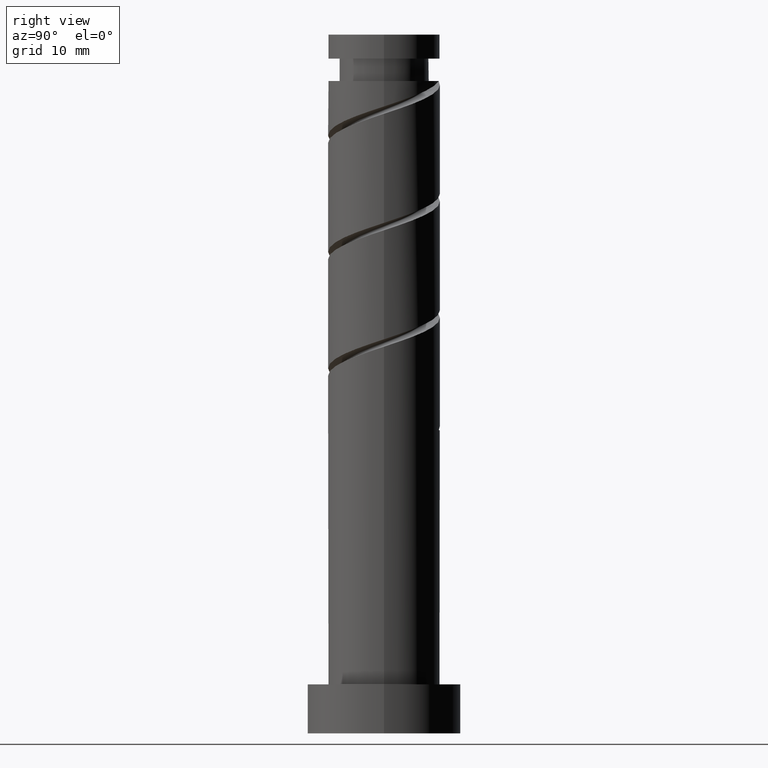
[diagram: clean part render]
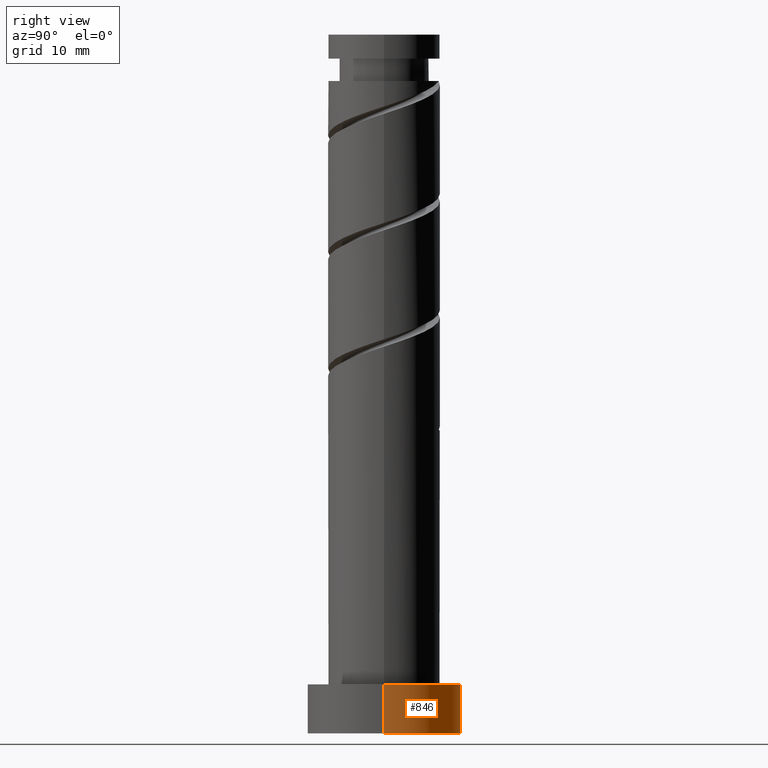
[diagram: same view with one face highlighted and labeled with its STEP entity id]
A machine part, right view. The second image highlights one B-rep face of the part: STEP entity #846.
In plain terms, the highlighted cylindrical surface (partial cylindrical patch) has radius 11 mm, axis along (-0, -0, -1).
Its self-contained STEP definition (entity closure, byte-faithful):
#117 = CARTESIAN_POINT ( 'NONE',  ( 0.000000000000000000, 0.000000000000000000, 7.000000000000000000 ) ) ;
#161 = CARTESIAN_POINT ( 'NONE',  ( -11.00000000000000000, 0.000000000000000000, 7.000000000000000000 ) ) ;
#214 = CARTESIAN_POINT ( 'NONE',  ( -11.00000000000000000, 0.000000000000000000, 7.000000000000000000 ) ) ;
#225 = DIRECTION ( 'NONE',  ( -1.000000000000000000, 0.000000000000000000, 0.000000000000000000 ) ) ;
#272 = EDGE_CURVE ( 'NONE', #1394, #1332, #549, .T. ) ;
#325 = VECTOR ( 'NONE', #872, 1000.000000000000000 ) ;
#369 = AXIS2_PLACEMENT_3D ( 'NONE', #939, #687, #225 ) ;
#396 = CARTESIAN_POINT ( 'NONE',  ( 11.00000000000000000, 1.347111479062088405E-15, 7.000000000000000000 ) ) ;
#409 = ORIENTED_EDGE ( 'NONE', *, *, #494, .T. ) ;
#430 = ORIENTED_EDGE ( 'NONE', *, *, #1056, .F. ) ;
#432 = EDGE_CURVE ( 'NONE', #962, #789, #813, .T. ) ;
#494 = EDGE_CURVE ( 'NONE', #1394, #962, #510, .T. ) ;
#510 = LINE ( 'NONE', #396, #325 ) ;
#549 = CIRCLE ( 'NONE', #1378, 11.00000000000000000 ) ;
#617 = VECTOR ( 'NONE', #898, 1000.000000000000000 ) ;
#687 = DIRECTION ( 'NONE',  ( -0.000000000000000000, -0.000000000000000000, -1.000000000000000000 ) ) ;
#689 = DIRECTION ( 'NONE',  ( 0.000000000000000000, 0.000000000000000000, 1.000000000000000000 ) ) ;
#789 = VERTEX_POINT ( 'NONE', #1475 ) ;
#797 = CARTESIAN_POINT ( 'NONE',  ( 11.00000000000000000, 1.347111479062088405E-15, 7.000000000000000000 ) ) ;
#809 = CARTESIAN_POINT ( 'NONE',  ( 0.000000000000000000, 0.000000000000000000, 0.000000000000000000 ) ) ;
#813 = CIRCLE ( 'NONE', #1123, 11.00000000000000000 ) ;
#846 = ADVANCED_FACE ( 'NONE', ( #1372 ), #1023, .T. ) ;
#872 = DIRECTION ( 'NONE',  ( -0.000000000000000000, -0.000000000000000000, -1.000000000000000000 ) ) ;
#898 = DIRECTION ( 'NONE',  ( -0.000000000000000000, -0.000000000000000000, -1.000000000000000000 ) ) ;
#939 = CARTESIAN_POINT ( 'NONE',  ( 0.000000000000000000, 0.000000000000000000, 7.000000000000000000 ) ) ;
#962 = VERTEX_POINT ( 'NONE', #970 ) ;
#970 = CARTESIAN_POINT ( 'NONE',  ( 11.00000000000000000, 1.347111479062088405E-15, 0.000000000000000000 ) ) ;
#1023 = CYLINDRICAL_SURFACE ( 'NONE', #369, 11.00000000000000000 ) ;
#1056 = EDGE_CURVE ( 'NONE', #1332, #789, #1200, .T. ) ;
#1123 = AXIS2_PLACEMENT_3D ( 'NONE', #809, #689, #1148 ) ;
#1143 = DIRECTION ( 'NONE',  ( 0.000000000000000000, 0.000000000000000000, 1.000000000000000000 ) ) ;
#1148 = DIRECTION ( 'NONE',  ( 1.000000000000000000, 0.000000000000000000, 0.000000000000000000 ) ) ;
#1200 = LINE ( 'NONE', #161, #617 ) ;
#1332 = VERTEX_POINT ( 'NONE', #214 ) ;
#1357 = DIRECTION ( 'NONE',  ( 1.000000000000000000, 0.000000000000000000, 0.000000000000000000 ) ) ;
#1372 = FACE_OUTER_BOUND ( 'NONE', #1426, .T. ) ;
#1378 = AXIS2_PLACEMENT_3D ( 'NONE', #117, #1143, #1357 ) ;
#1394 = VERTEX_POINT ( 'NONE', #797 ) ;
#1405 = ORIENTED_EDGE ( 'NONE', *, *, #432, .T. ) ;
#1410 = ORIENTED_EDGE ( 'NONE', *, *, #272, .F. ) ;
#1426 = EDGE_LOOP ( 'NONE', ( #1410, #409, #1405, #430 ) ) ;
#1475 = CARTESIAN_POINT ( 'NONE',  ( -11.00000000000000000, 0.000000000000000000, 0.000000000000000000 ) ) ;